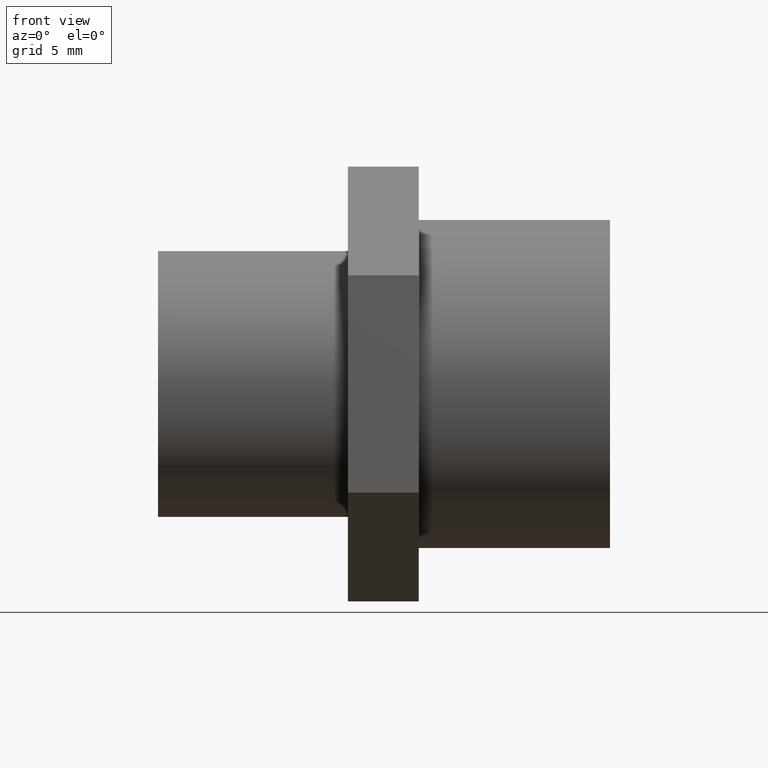
[diagram: clean part render]
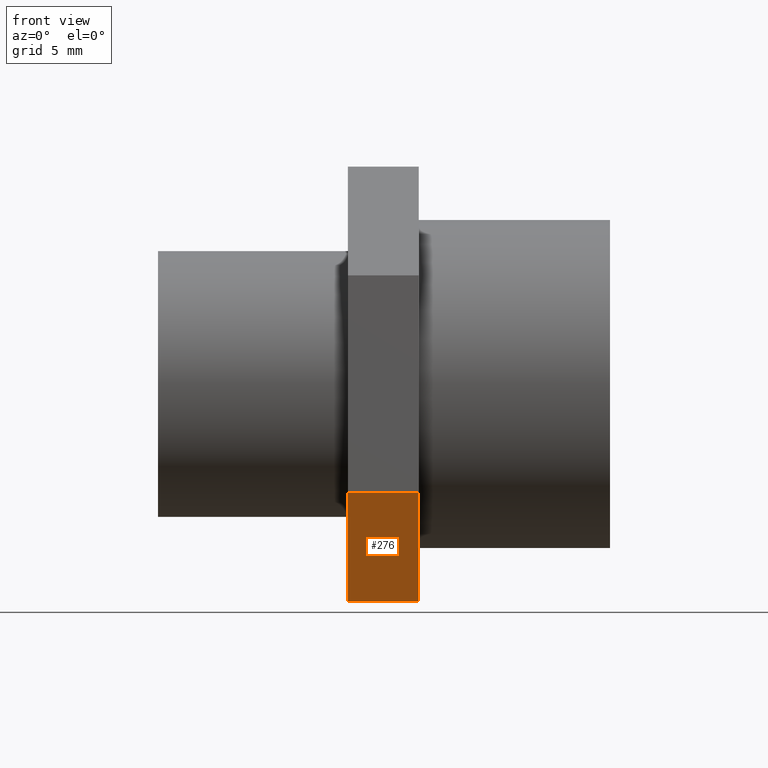
[diagram: same view with one face highlighted and labeled with its STEP entity id]
A machine part, front view. The second image highlights one B-rep face of the part: STEP entity #276.
In plain terms, the highlighted planar face has unit normal (0, -0.5, -0.866).
Its self-contained STEP definition (entity closure, byte-faithful):
#2 = ORIENTED_EDGE ( 'NONE', *, *, #189, .F. ) ;
#9 = DIRECTION ( 'NONE',  ( 0.0000000000000000000, 0.8660254037844388200, -0.4999999999999997200 ) ) ;
#16 = DIRECTION ( 'NONE',  ( 0.0000000000000000000, 0.8660254037844388200, -0.4999999999999997200 ) ) ;
#22 = VERTEX_POINT ( 'NONE', #413 ) ;
#27 = AXIS2_PLACEMENT_3D ( 'NONE', #135, #66, #9 ) ;
#44 = CARTESIAN_POINT ( 'NONE',  ( 0.1000000000000000100, 1.352032947687220900E-016, -0.6134346610139772600 ) ) ;
#56 = EDGE_CURVE ( 'NONE', #386, #207, #170, .T. ) ;
#60 = VECTOR ( 'NONE', #663, 39.37007874015748100 ) ;
#66 = DIRECTION ( 'NONE',  ( 0.0000000000000000000, -0.4999999999999997200, -0.8660254037844388200 ) ) ;
#101 = EDGE_LOOP ( 'NONE', ( #215, #2, #129, #179 ) ) ;
#121 = CARTESIAN_POINT ( 'NONE',  ( -0.1000000000000000100, -0.5312500000000000000, -0.3067173305069886300 ) ) ;
#129 = ORIENTED_EDGE ( 'NONE', *, *, #56, .F. ) ;
#135 = CARTESIAN_POINT ( 'NONE',  ( -0.1000000000000000100, -0.5312500000000000000, -0.3067173305069886300 ) ) ;
#165 = EDGE_CURVE ( 'NONE', #386, #22, #564, .T. ) ;
#170 = LINE ( 'NONE', #319, #60 ) ;
#171 = FACE_OUTER_BOUND ( 'NONE', #101, .T. ) ;
#179 = ORIENTED_EDGE ( 'NONE', *, *, #165, .T. ) ;
#189 = EDGE_CURVE ( 'NONE', #207, #226, #611, .T. ) ;
#199 = VECTOR ( 'NONE', #598, 39.37007874015748100 ) ;
#207 = VERTEX_POINT ( 'NONE', #614 ) ;
#215 = ORIENTED_EDGE ( 'NONE', *, *, #668, .T. ) ;
#226 = VERTEX_POINT ( 'NONE', #44 ) ;
#256 = CARTESIAN_POINT ( 'NONE',  ( -0.1000000000000000100, 1.352032947687220900E-016, -0.6134346610139772600 ) ) ;
#272 = CARTESIAN_POINT ( 'NONE',  ( -0.1000000000000000100, -0.5312500000000000000, -0.3067173305069886300 ) ) ;
#276 = ADVANCED_FACE ( 'NONE', ( #171 ), #574, .T. ) ;
#306 = DIRECTION ( 'NONE',  ( 0.0000000000000000000, 0.8660254037844388200, -0.4999999999999997200 ) ) ;
#319 = CARTESIAN_POINT ( 'NONE',  ( -0.1000000000000000100, -0.5312500000000000000, -0.3067173305069886300 ) ) ;
#386 = VERTEX_POINT ( 'NONE', #121 ) ;
#408 = CARTESIAN_POINT ( 'NONE',  ( 0.1000000000000000100, -0.5312500000000000000, -0.3067173305069886300 ) ) ;
#413 = CARTESIAN_POINT ( 'NONE',  ( -0.1000000000000000100, 1.352032947687220900E-016, -0.6134346610139772600 ) ) ;
#524 = VECTOR ( 'NONE', #306, 39.37007874015748900 ) ;
#529 = LINE ( 'NONE', #256, #199 ) ;
#551 = VECTOR ( 'NONE', #16, 39.37007874015748900 ) ;
#564 = LINE ( 'NONE', #272, #551 ) ;
#574 = PLANE ( 'NONE',  #27 ) ;
#598 = DIRECTION ( 'NONE',  ( 1.000000000000000000, 0.0000000000000000000, 0.0000000000000000000 ) ) ;
#611 = LINE ( 'NONE', #408, #524 ) ;
#614 = CARTESIAN_POINT ( 'NONE',  ( 0.1000000000000000100, -0.5312500000000000000, -0.3067173305069886300 ) ) ;
#663 = DIRECTION ( 'NONE',  ( 1.000000000000000000, 0.0000000000000000000, 0.0000000000000000000 ) ) ;
#668 = EDGE_CURVE ( 'NONE', #22, #226, #529, .T. ) ;